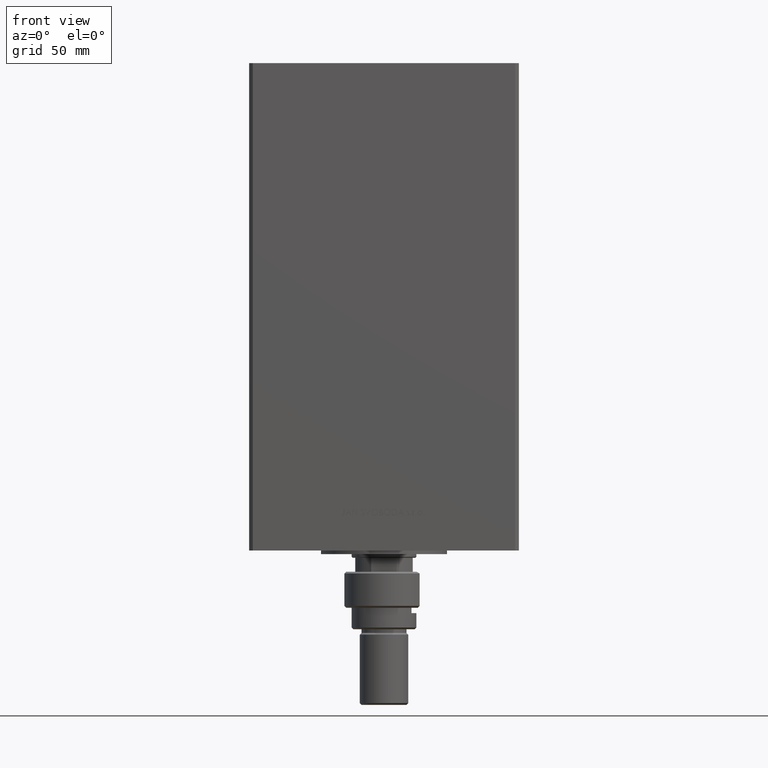
[diagram: clean part render]
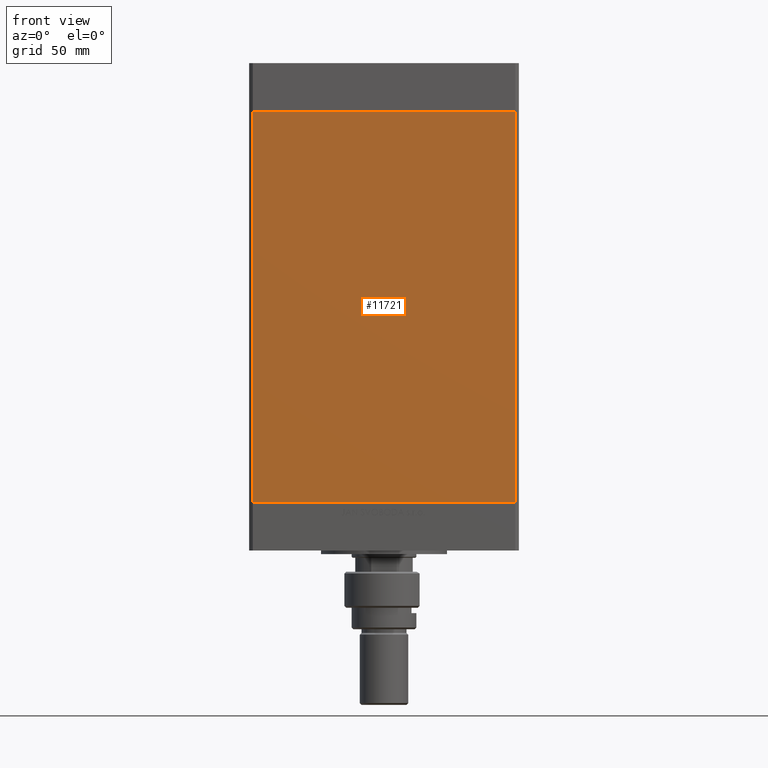
[diagram: same view with one face highlighted and labeled with its STEP entity id]
A machine part, front view. The second image highlights one B-rep face of the part: STEP entity #11721.
In plain terms, the highlighted planar face has unit normal (0, 1, 0).
Its self-contained STEP definition (entity closure, byte-faithful):
#858 = VECTOR ( 'NONE', #21686, 1000.000000000000000 ) ;
#1016 = ORIENTED_EDGE ( 'NONE', *, *, #15907, .T. ) ;
#1842 = ORIENTED_EDGE ( 'NONE', *, *, #39383, .F. ) ;
#2758 = CARTESIAN_POINT ( 'NONE',  ( 72.99999999999998579, -62.50000000000000000, 0.000000000000000000 ) ) ;
#3773 = VERTEX_POINT ( 'NONE', #15193 ) ;
#6826 = VERTEX_POINT ( 'NONE', #2758 ) ;
#8090 = DIRECTION ( 'NONE',  ( 0.000000000000000000, -0.000000000000000000, 1.000000000000000000 ) ) ;
#10686 = ORIENTED_EDGE ( 'NONE', *, *, #12128, .F. ) ;
#11380 = CARTESIAN_POINT ( 'NONE',  ( -72.99999999999998579, -62.50000000000000000, 217.0000000000000000 ) ) ;
#11721 = ADVANCED_FACE ( 'NONE', ( #30652 ), #15420, .F. ) ;
#12128 = EDGE_CURVE ( 'NONE', #36744, #3773, #18138, .T. ) ;
#13922 = VERTEX_POINT ( 'NONE', #17568 ) ;
#15193 = CARTESIAN_POINT ( 'NONE',  ( 72.99999999999998579, -62.50000000000000000, 217.0000000000000000 ) ) ;
#15291 = VECTOR ( 'NONE', #39663, 1000.000000000000000 ) ;
#15420 = PLANE ( 'NONE',  #38870 ) ;
#15907 = EDGE_CURVE ( 'NONE', #36744, #13922, #31688, .T. ) ;
#17401 = ORIENTED_EDGE ( 'NONE', *, *, #38049, .T. ) ;
#17568 = CARTESIAN_POINT ( 'NONE',  ( -72.99999999999998579, -62.50000000000000000, 0.000000000000000000 ) ) ;
#18138 = LINE ( 'NONE', #48307, #858 ) ;
#18783 = VECTOR ( 'NONE', #27891, 1000.000000000000000 ) ;
#20392 = LINE ( 'NONE', #40156, #15291 ) ;
#21686 = DIRECTION ( 'NONE',  ( 1.000000000000000000, 0.000000000000000000, 0.000000000000000000 ) ) ;
#25548 = CARTESIAN_POINT ( 'NONE',  ( -72.99999999999998579, -62.50000000000000000, 217.0000000000000000 ) ) ;
#27891 = DIRECTION ( 'NONE',  ( -0.000000000000000000, -0.000000000000000000, -1.000000000000000000 ) ) ;
#29575 = EDGE_LOOP ( 'NONE', ( #17401, #1842, #10686, #1016 ) ) ;
#30652 = FACE_OUTER_BOUND ( 'NONE', #29575, .T. ) ;
#30672 = LINE ( 'NONE', #41835, #46931 ) ;
#31688 = LINE ( 'NONE', #47150, #18783 ) ;
#36744 = VERTEX_POINT ( 'NONE', #25548 ) ;
#38049 = EDGE_CURVE ( 'NONE', #13922, #6826, #20392, .T. ) ;
#38870 = AXIS2_PLACEMENT_3D ( 'NONE', #11380, #39010, #8090 ) ;
#39010 = DIRECTION ( 'NONE',  ( 0.000000000000000000, 1.000000000000000000, 0.000000000000000000 ) ) ;
#39383 = EDGE_CURVE ( 'NONE', #3773, #6826, #30672, .T. ) ;
#39663 = DIRECTION ( 'NONE',  ( 1.000000000000000000, 0.000000000000000000, 0.000000000000000000 ) ) ;
#40156 = CARTESIAN_POINT ( 'NONE',  ( -72.99999999999998579, -62.50000000000000000, 0.000000000000000000 ) ) ;
#41835 = CARTESIAN_POINT ( 'NONE',  ( 72.99999999999998579, -62.50000000000000000, 217.0000000000000000 ) ) ;
#42572 = DIRECTION ( 'NONE',  ( -0.000000000000000000, -0.000000000000000000, -1.000000000000000000 ) ) ;
#46931 = VECTOR ( 'NONE', #42572, 1000.000000000000000 ) ;
#47150 = CARTESIAN_POINT ( 'NONE',  ( -72.99999999999998579, -62.50000000000000000, 217.0000000000000000 ) ) ;
#48307 = CARTESIAN_POINT ( 'NONE',  ( -72.99999999999998579, -62.50000000000000000, 217.0000000000000000 ) ) ;